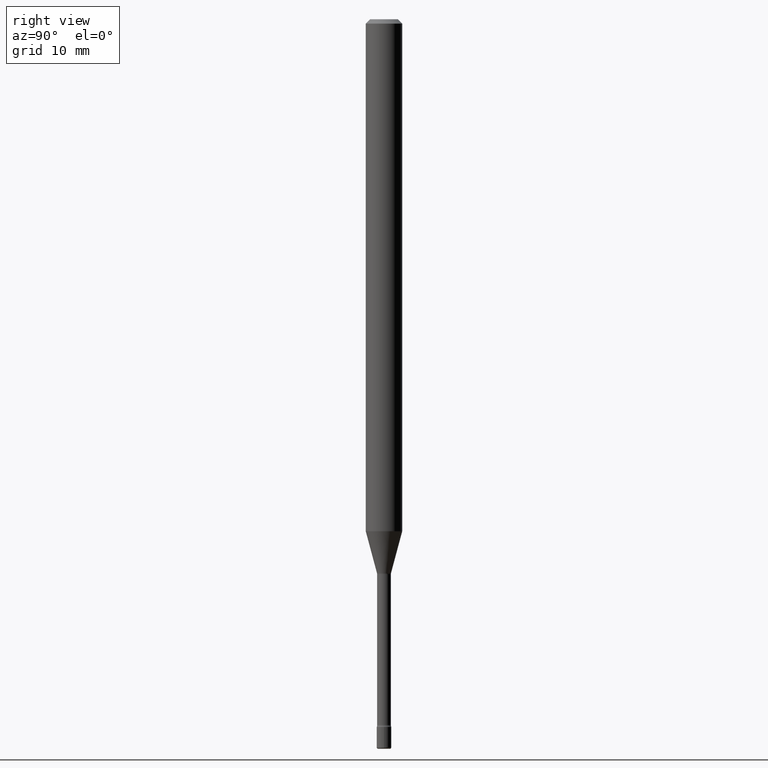
[diagram: clean part render]
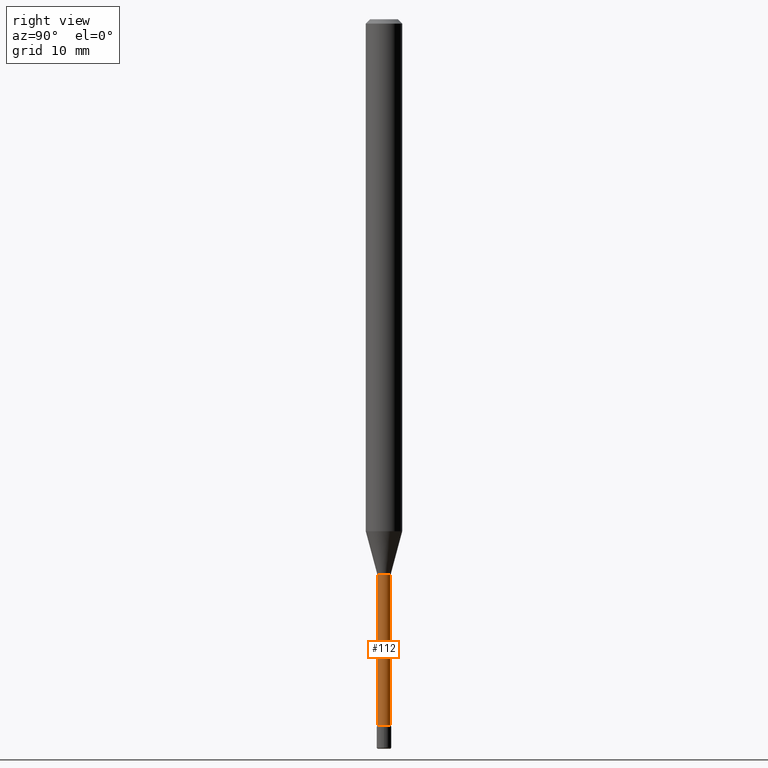
[diagram: same view with one face highlighted and labeled with its STEP entity id]
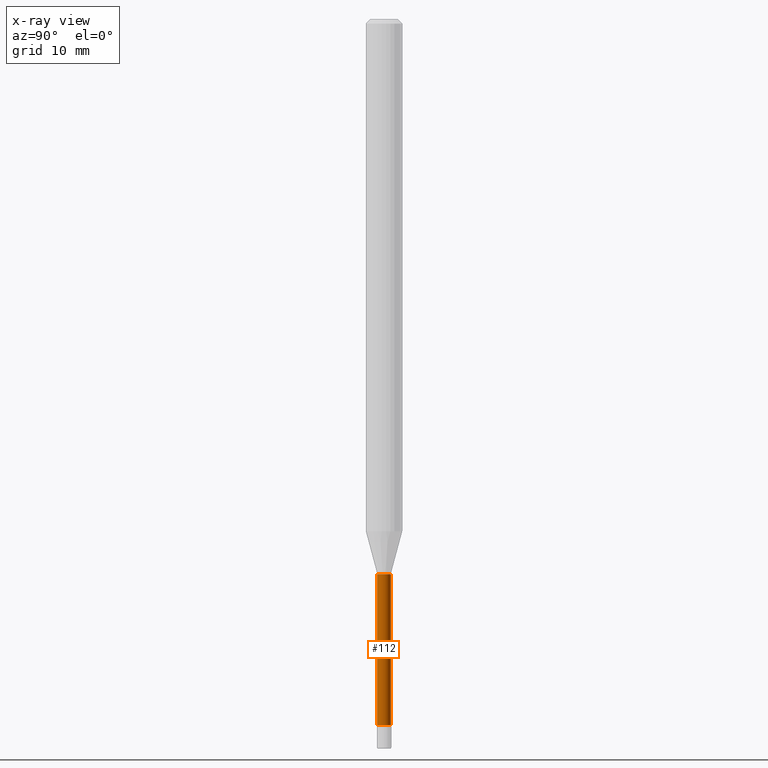
[diagram: x-ray of the same camera — body ghosted, the highlighted face saturated]
A machine part, right view. The second image highlights one B-rep face of the part: STEP entity #112.
The next image is the same camera in x-ray: the body ghosted, the highlighted face saturated — about 0% of this face is hidden behind the body in this view.
In plain terms, the highlighted cylindrical surface (edge-blend (fillet) strip) has radius 0.5969 mm, axis along (-0, 0, 1).
Its self-contained STEP definition (entity closure, byte-faithful):
#10 = LINE ( 'NONE', #97, #153 ) ;
#14 = CIRCLE ( 'NONE', #536, 0.02350000000000000352 ) ;
#19 = EDGE_LOOP ( 'NONE', ( #239, #75, #296, #341 ) ) ;
#31 = VERTEX_POINT ( 'NONE', #353 ) ;
#36 = DIRECTION ( 'NONE',  ( -2.445458409573931525E-29, 3.491496227382129512E-15, 1.000000000000000000 ) ) ;
#49 = DIRECTION ( 'NONE',  ( -6.982962677686265922E-15, -1.000000000000000000, 0.000000000000000000 ) ) ;
#73 = EDGE_CURVE ( 'NONE', #204, #345, #476, .T. ) ;
#75 = ORIENTED_EDGE ( 'NONE', *, *, #546, .T. ) ;
#87 = CARTESIAN_POINT ( 'NONE',  ( -1.640996229256270547E-16, -0.02349999999999997230, 5.601235602347259253E-16 ) ) ;
#94 = FACE_OUTER_BOUND ( 'NONE', #19, .T. ) ;
#97 = CARTESIAN_POINT ( 'NONE',  ( 1.669775429036233222E-16, 0.02349999999999997230, 3.960232375477661025E-16 ) ) ;
#112 = ADVANCED_FACE ( 'NONE', ( #94 ), #435, .T. ) ;
#126 = DIRECTION ( 'NONE',  ( -6.982962677686266711E-15, -1.000000000000000000, 0.000000000000000000 ) ) ;
#153 = VECTOR ( 'NONE', #485, 39.37007874015748143 ) ;
#171 = EDGE_CURVE ( 'NONE', #204, #343, #569, .T. ) ;
#196 = CARTESIAN_POINT ( 'NONE',  ( -1.640996229255807584E-16, -0.02350000000000664405, -1.901974787463811323 ) ) ;
#204 = VERTEX_POINT ( 'NONE', #318 ) ;
#214 = CARTESIAN_POINT ( 'NONE',  ( -1.169113584055446105E-44, 1.669184350826100908E-30, 4.780733988912460139E-16 ) ) ;
#239 = ORIENTED_EDGE ( 'NONE', *, *, #171, .T. ) ;
#252 = DIRECTION ( 'NONE',  ( -2.445458409573931525E-29, 3.491496227382129512E-15, 1.000000000000000000 ) ) ;
#270 = CARTESIAN_POINT ( 'NONE',  ( 1.723066134218835880E-16, 0.02349999999999149991, -2.418461651584689065 ) ) ;
#296 = ORIENTED_EDGE ( 'NONE', *, *, #321, .F. ) ;
#308 = DIRECTION ( 'NONE',  ( -2.445458409573931525E-29, 3.491496227382129512E-15, 1.000000000000000000 ) ) ;
#318 = CARTESIAN_POINT ( 'NONE',  ( -1.640996229255677176E-16, -0.02350000000000838571, -2.418461651584689065 ) ) ;
#321 = EDGE_CURVE ( 'NONE', #345, #31, #14, .T. ) ;
#341 = ORIENTED_EDGE ( 'NONE', *, *, #73, .F. ) ;
#343 = VERTEX_POINT ( 'NONE', #270 ) ;
#345 = VERTEX_POINT ( 'NONE', #196 ) ;
#349 = DIRECTION ( 'NONE',  ( -2.445458409573931805E-29, 3.491496227382129512E-15, 1.000000000000000000 ) ) ;
#353 = CARTESIAN_POINT ( 'NONE',  ( 1.669775429036827579E-16, 0.02349999999999335953, -1.901974787463811323 ) ) ;
#392 = DIRECTION ( 'NONE',  ( -6.982962677686265922E-15, -1.000000000000000000, 3.491496227382127935E-15 ) ) ;
#435 = CYLINDRICAL_SURFACE ( 'NONE', #559, 0.02349999999999997230 ) ;
#476 = LINE ( 'NONE', #87, #543 ) ;
#485 = DIRECTION ( 'NONE',  ( -2.445458409573931805E-29, 3.491496227382129512E-15, 1.000000000000000000 ) ) ;
#522 = AXIS2_PLACEMENT_3D ( 'NONE', #526, #252, #126 ) ;
#526 = CARTESIAN_POINT ( 'NONE',  ( 5.914247384099837536E-29, -8.444049732576294748E-15, -2.418461651584689065 ) ) ;
#536 = AXIS2_PLACEMENT_3D ( 'NONE', #538, #308, #49 ) ;
#538 = CARTESIAN_POINT ( 'NONE',  ( 4.651200238800969126E-29, -6.640737795005825255E-15, -1.901974787463811323 ) ) ;
#543 = VECTOR ( 'NONE', #349, 39.37007874015748143 ) ;
#546 = EDGE_CURVE ( 'NONE', #343, #31, #10, .T. ) ;
#559 = AXIS2_PLACEMENT_3D ( 'NONE', #214, #36, #392 ) ;
#569 = CIRCLE ( 'NONE', #522, 0.02349999999999994107 ) ;